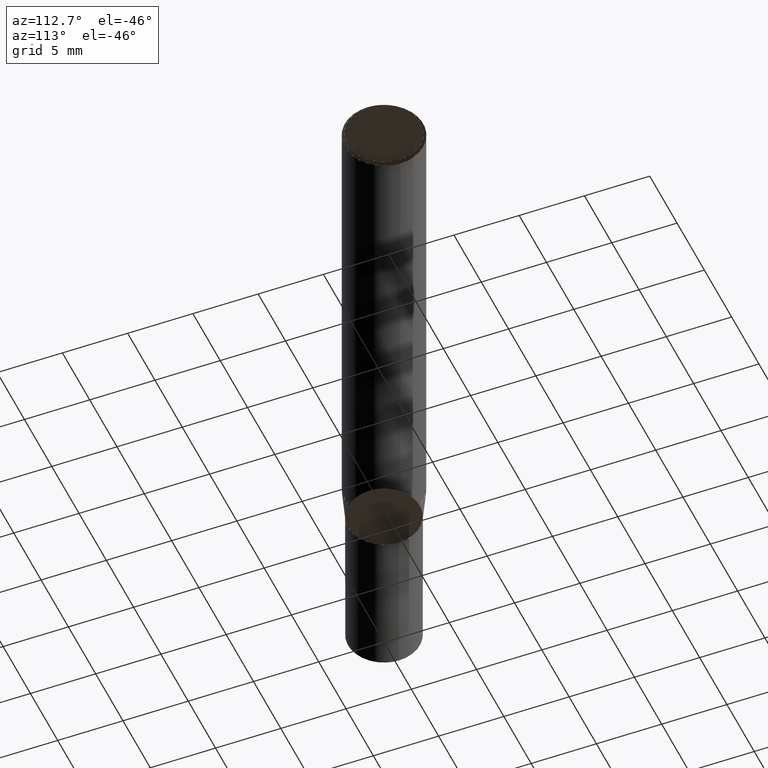
[diagram: clean part render]
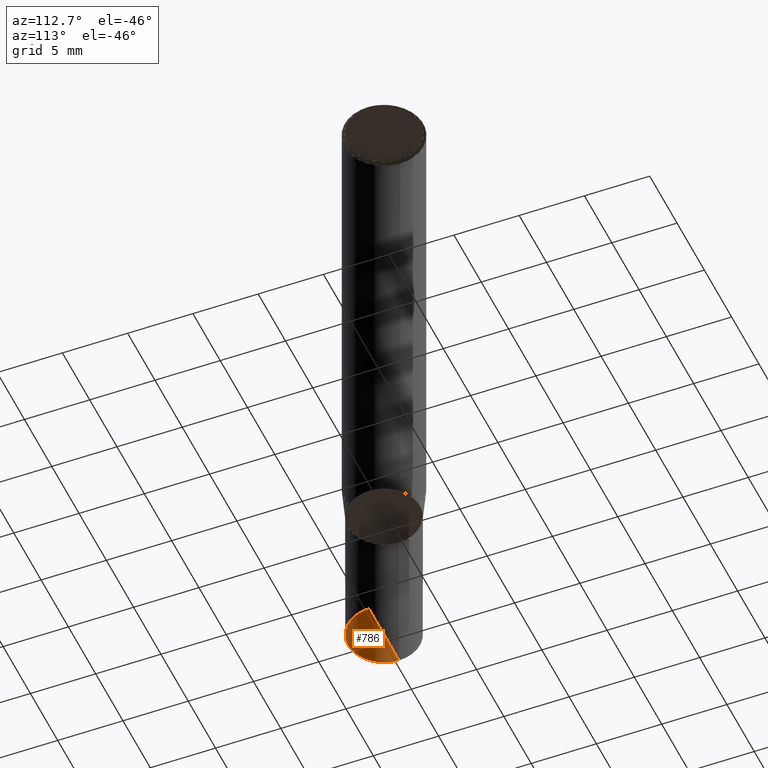
[diagram: same view with one face highlighted and labeled with its STEP entity id]
A machine part, auxiliary view. The second image highlights one B-rep face of the part: STEP entity #786.
In plain terms, the highlighted face is a freeform B-spline surface patch.
Its self-contained STEP definition (entity closure, byte-faithful):
#109=CARTESIAN_POINT('',(0.0,-2.75,-15.0));
#663=CARTESIAN_POINT('',(0.0,0.0,-15.0));
#664=CARTESIAN_POINT('',(2.75,0.0,-15.0));
#668=CARTESIAN_POINT('',(-2.75,0.0,-15.0));
#675=CARTESIAN_POINT('',(-2.75,-2.75,-15.0));
#676=CARTESIAN_POINT('',(2.75,-2.75,-15.0));
#771=(
BOUNDED_SURFACE()
B_SPLINE_SURFACE(1,2,(
(#663,#663,#663,#663,#663),
(#668,#675,#109,#676,#664)
), .UNSPECIFIED.,.F.,.F.,.F.)
B_SPLINE_SURFACE_WITH_KNOTS((2,2),(3,2,3),(
0.0,1.0),(
0.0,0.5,1.0), .UNSPECIFIED.)
GEOMETRIC_REPRESENTATION_ITEM()
RATIONAL_B_SPLINE_SURFACE(((1.0,0.707106781187,1.0,0.707106781187,1.0),
(1.0,0.707106781187,1.0,0.707106781187,1.0)
))
REPRESENTATION_ITEM('')
SURFACE()
);
#772=(
BOUNDED_CURVE()
B_SPLINE_CURVE(1,(#664,#663),.UNSPECIFIED.,.F.,.F.)
B_SPLINE_CURVE_WITH_KNOTS((2,2),
(0.0,1.0),.UNSPECIFIED.)
CURVE()
GEOMETRIC_REPRESENTATION_ITEM()
RATIONAL_B_SPLINE_CURVE((1.0,1.0))
REPRESENTATION_ITEM('')
);
#773=(
BOUNDED_CURVE()
B_SPLINE_CURVE(1,(#663,#668),.UNSPECIFIED.,.F.,.F.)
B_SPLINE_CURVE_WITH_KNOTS((2,2),
(0.0,1.0),.UNSPECIFIED.)
CURVE()
GEOMETRIC_REPRESENTATION_ITEM()
RATIONAL_B_SPLINE_CURVE((1.0,1.0))
REPRESENTATION_ITEM('')
);
#774=(
BOUNDED_CURVE()
B_SPLINE_CURVE(2,(#668,#675,#109,#676,#664),.UNSPECIFIED.,.F.,.F.)
B_SPLINE_CURVE_WITH_KNOTS((3,2,3),
(0.0,0.5,1.0),.UNSPECIFIED.)
CURVE()
GEOMETRIC_REPRESENTATION_ITEM()
RATIONAL_B_SPLINE_CURVE((1.0,0.707106781187,1.0,0.707106781187,1.0))
REPRESENTATION_ITEM('')
);
#775=VERTEX_POINT('',#663);
#776=VERTEX_POINT('',#664);
#777=VERTEX_POINT('',#668);
#778=EDGE_CURVE('',#776,#775,#772,.T.);
#779=EDGE_CURVE('',#775,#777,#773,.T.);
#780=EDGE_CURVE('',#777,#776,#774,.T.);
#781=ORIENTED_EDGE('',*,*,#778,.T.);
#782=ORIENTED_EDGE('',*,*,#779,.T.);
#783=ORIENTED_EDGE('',*,*,#780,.T.);
#784=EDGE_LOOP('',(#781,#782,#783));
#785=FACE_OUTER_BOUND('',#784,.T.);
#786=ADVANCED_FACE('',(#785),#771,.T.);